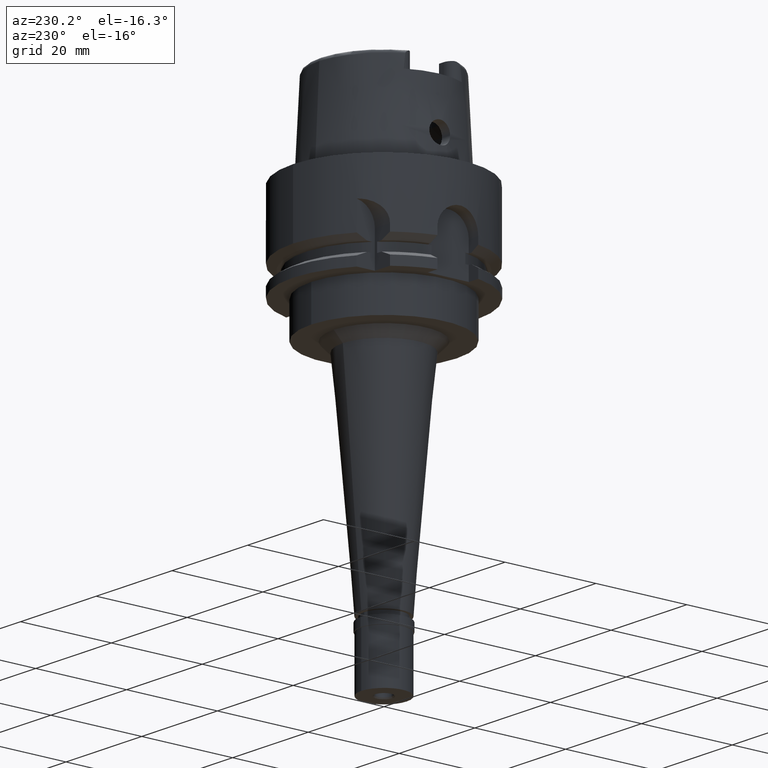
[diagram: clean part render]
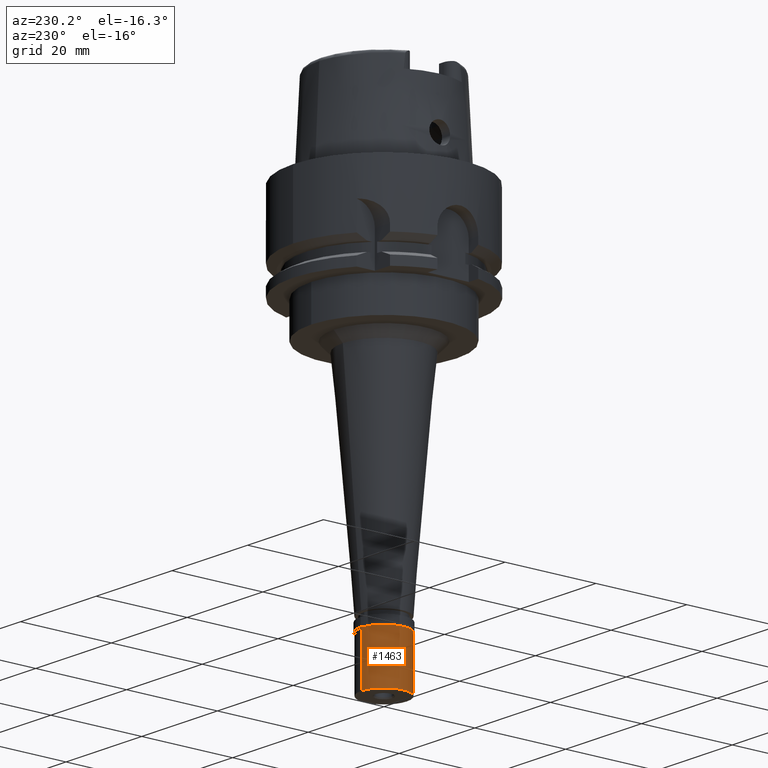
[diagram: same view with one face highlighted and labeled with its STEP entity id]
A machine part, auxiliary view. The second image highlights one B-rep face of the part: STEP entity #1463.
In plain terms, the highlighted cylindrical surface (edge-blend (fillet) strip) has radius 5 mm, axis along (0, 0, 1).
Its self-contained STEP definition (entity closure, byte-faithful):
#303 = CARTESIAN_POINT ( 'NONE',  ( 0.0000000000000000000, 0.0000000000000000000, -1.800000000000000044 ) ) ;
#466 = DIRECTION ( 'NONE',  ( 0.0000000000000000000, 0.0000000000000000000, -1.000000000000000000 ) ) ;
#544 = CIRCLE ( 'NONE', #2253, 5.000000000000000000 ) ;
#823 = VECTOR ( 'NONE', #3955, 1000.000000000000000 ) ;
#940 = VERTEX_POINT ( 'NONE', #1910 ) ;
#1007 = VERTEX_POINT ( 'NONE', #2916 ) ;
#1463 = ADVANCED_FACE ( 'NONE', ( #2785 ), #4767, .T. ) ;
#1538 = DIRECTION ( 'NONE',  ( 0.0000000000000000000, 0.0000000000000000000, -1.000000000000000000 ) ) ;
#1661 = EDGE_CURVE ( 'NONE', #1007, #940, #544, .T. ) ;
#1910 = CARTESIAN_POINT ( 'NONE',  ( 0.0000000000000000000, -5.000000000000000000, -13.00000000000000000 ) ) ;
#2016 = DIRECTION ( 'NONE',  ( 0.0000000000000000000, -1.000000000000000000, 0.0000000000000000000 ) ) ;
#2253 = AXIS2_PLACEMENT_3D ( 'NONE', #3245, #2525, #4875 ) ;
#2357 = EDGE_CURVE ( 'NONE', #4261, #940, #2427, .T. ) ;
#2427 = LINE ( 'NONE', #4066, #823 ) ;
#2430 = AXIS2_PLACEMENT_3D ( 'NONE', #3512, #4420, #3216 ) ;
#2525 = DIRECTION ( 'NONE',  ( 0.0000000000000000000, 0.0000000000000000000, 1.000000000000000000 ) ) ;
#2673 = VERTEX_POINT ( 'NONE', #2766 ) ;
#2766 = CARTESIAN_POINT ( 'NONE',  ( 0.0000000000000000000, 5.000000000000000000, -1.800000000000000044 ) ) ;
#2785 = FACE_OUTER_BOUND ( 'NONE', #4630, .T. ) ;
#2791 = CIRCLE ( 'NONE', #3222, 5.000000000000000000 ) ;
#2903 = LINE ( 'NONE', #4537, #3487 ) ;
#2909 = ORIENTED_EDGE ( 'NONE', *, *, #3871, .T. ) ;
#2916 = CARTESIAN_POINT ( 'NONE',  ( 0.0000000000000000000, 5.000000000000000000, -13.00000000000000000 ) ) ;
#3216 = DIRECTION ( 'NONE',  ( 0.0000000000000000000, 1.000000000000000000, 0.0000000000000000000 ) ) ;
#3222 = AXIS2_PLACEMENT_3D ( 'NONE', #303, #1538, #2016 ) ;
#3245 = CARTESIAN_POINT ( 'NONE',  ( 0.0000000000000000000, 0.0000000000000000000, -13.00000000000000000 ) ) ;
#3249 = CARTESIAN_POINT ( 'NONE',  ( 0.0000000000000000000, -5.000000000000000000, -1.800000000000000044 ) ) ;
#3487 = VECTOR ( 'NONE', #466, 1000.000000000000000 ) ;
#3512 = CARTESIAN_POINT ( 'NONE',  ( 0.0000000000000000000, 0.0000000000000000000, -13.65000000000000036 ) ) ;
#3871 = EDGE_CURVE ( 'NONE', #2673, #1007, #2903, .T. ) ;
#3955 = DIRECTION ( 'NONE',  ( 0.0000000000000000000, 0.0000000000000000000, -1.000000000000000000 ) ) ;
#4066 = CARTESIAN_POINT ( 'NONE',  ( 0.0000000000000000000, -5.000000000000000000, -1.800000000000000044 ) ) ;
#4261 = VERTEX_POINT ( 'NONE', #3249 ) ;
#4368 = ORIENTED_EDGE ( 'NONE', *, *, #2357, .F. ) ;
#4420 = DIRECTION ( 'NONE',  ( 0.0000000000000000000, 0.0000000000000000000, 1.000000000000000000 ) ) ;
#4455 = ORIENTED_EDGE ( 'NONE', *, *, #1661, .T. ) ;
#4537 = CARTESIAN_POINT ( 'NONE',  ( 0.0000000000000000000, 5.000000000000000000, -1.800000000000000044 ) ) ;
#4630 = EDGE_LOOP ( 'NONE', ( #4455, #4368, #4792, #2909 ) ) ;
#4767 = CYLINDRICAL_SURFACE ( 'NONE', #2430, 5.000000000000000000 ) ;
#4792 = ORIENTED_EDGE ( 'NONE', *, *, #5227, .T. ) ;
#4875 = DIRECTION ( 'NONE',  ( 0.0000000000000000000, 1.000000000000000000, 0.0000000000000000000 ) ) ;
#5227 = EDGE_CURVE ( 'NONE', #4261, #2673, #2791, .T. ) ;